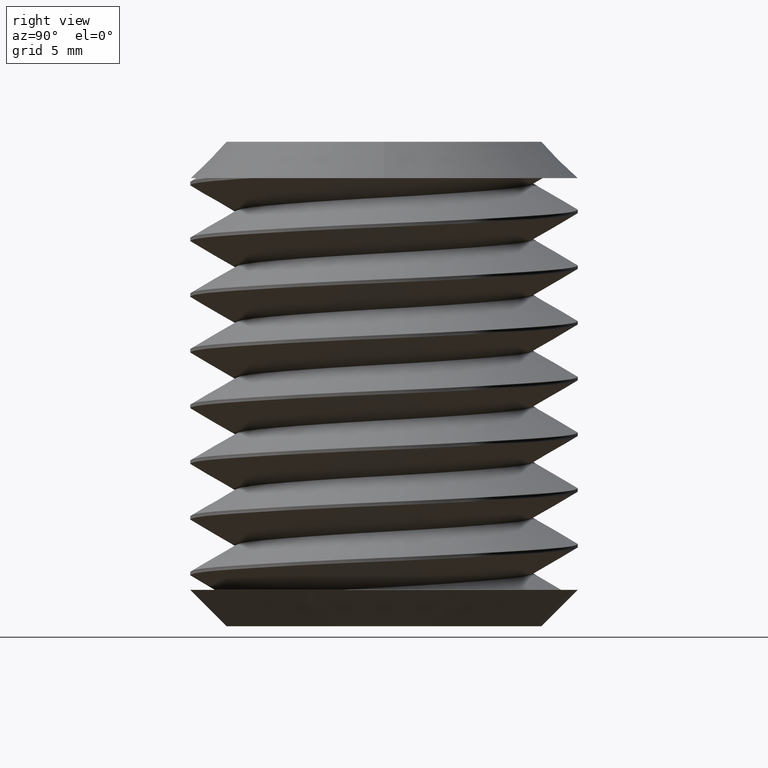
[diagram: clean part render]
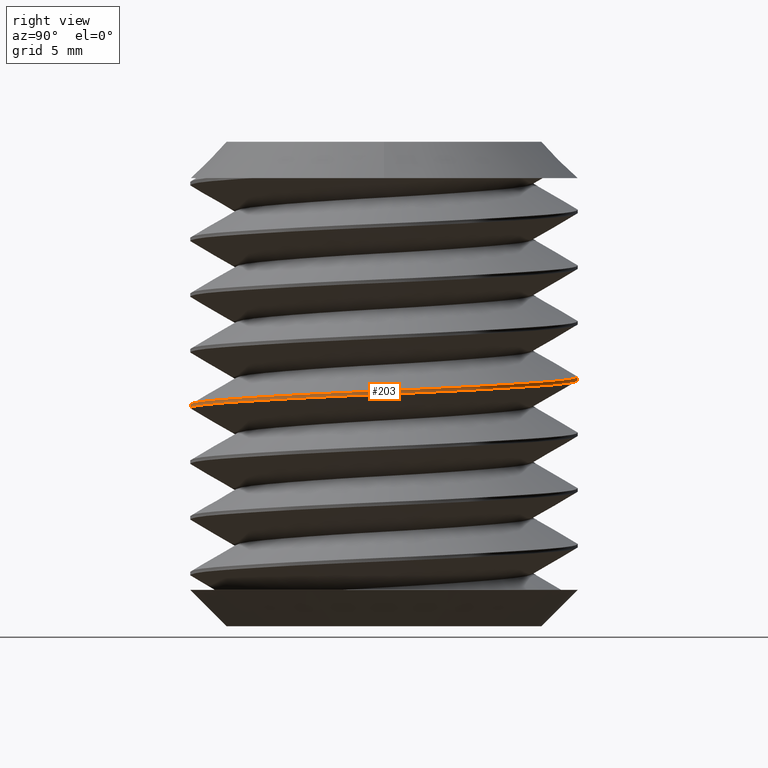
[diagram: same view with one face highlighted and labeled with its STEP entity id]
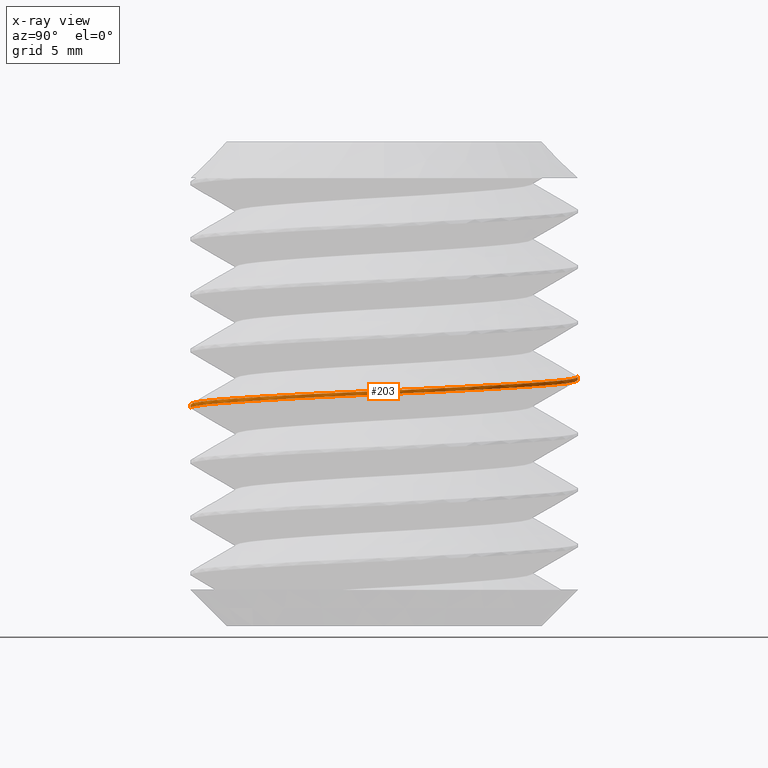
[diagram: x-ray of the same camera — body ghosted, the highlighted face saturated]
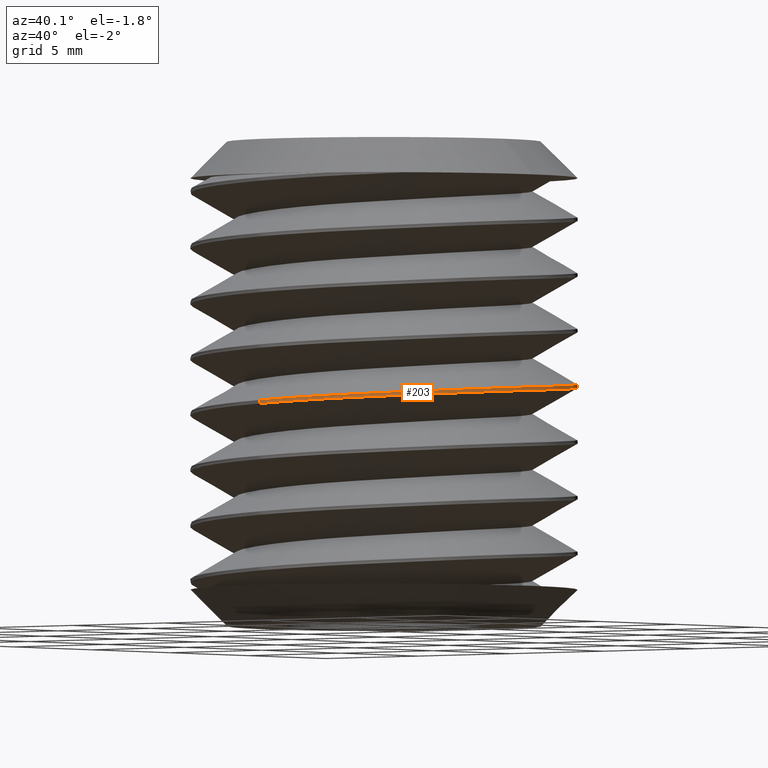
[diagram: same view with one face highlighted and labeled with its STEP entity id]
A machine part, right view. The second image highlights one B-rep face of the part: STEP entity #203.
The next image is the same camera in x-ray: the body ghosted, the highlighted face saturated — about 0% of this face is hidden behind the body in this view.
A second angle (auxiliary view) of the same face is appended — the face is thin or edge-on in the first view.
In plain terms, the highlighted cylindrical surface (partial cylindrical patch) has radius 8 mm, axis along (0, -0, 1).
Its self-contained STEP definition (entity closure, byte-faithful):
#203 = ADVANCED_FACE ( 'NONE', ( #1585 ), #1583, .T. ) ;
#330 = CARTESIAN_POINT ( 'NONE',  ( 1.557139477537179200E-014, -8.000000000000001800, -10.85272050236230800 ) ) ;
#331 = CARTESIAN_POINT ( 'NONE',  ( 0.5226088004371376400, -8.000000000000003600, -10.82767883069698400 ) ) ;
#332 = CARTESIAN_POINT ( 'NONE',  ( 1.052432807758349400, -7.947612275774814000, -10.80229143038271600 ) ) ;
#333 = CARTESIAN_POINT ( 'NONE',  ( 2.075669170900956900, -7.743626617668492300, -10.75326135474626500 ) ) ;
#334 = CARTESIAN_POINT ( 'NONE',  ( 2.574572175329633300, -7.592636507897314100, -10.72935558584506000 ) ) ;
#335 = CARTESIAN_POINT ( 'NONE',  ( 3.303389996710318400, -7.290867732059978400, -10.69443306534612100 ) ) ;
#336 = CARTESIAN_POINT ( 'NONE',  ( 3.542794317539678800, -7.177544593841743900, -10.68296160834558800 ) ) ;
#337 = CARTESIAN_POINT ( 'NONE',  ( 4.004477851331769100, -6.930562395013234700, -10.66083927243354000 ) ) ;
#338 = CARTESIAN_POINT ( 'NONE',  ( 4.228139451787611400, -6.796372243191880700, -10.65011739792593700 ) ) ;
#339 = CARTESIAN_POINT ( 'NONE',  ( 4.661260924461102700, -6.506956699247654200, -10.62773063775721000 ) ) ;
#340 = CARTESIAN_POINT ( 'NONE',  ( 4.870728819620360600, -6.351727176602501000, -10.61627056870788400 ) ) ;
#341 = CARTESIAN_POINT ( 'NONE',  ( 5.275290794567371900, -6.019945547347071500, -10.59280997892727600 ) ) ;
#342 = CARTESIAN_POINT ( 'NONE',  ( 5.471347608492910900, -5.842397324245436800, -10.58074505679400100 ) ) ;
#343 = CARTESIAN_POINT ( 'NONE',  ( 6.029531319889059700, -5.284104148455271300, -10.54420438511172300 ) ) ;
#344 = CARTESIAN_POINT ( 'NONE',  ( 6.359980615158742800, -4.880840584547417600, -10.51955312217353500 ) ) ;
#345 = CARTESIAN_POINT ( 'NONE',  ( 6.794845245353181800, -4.230610789347244900, -10.48215187162259600 ) ) ;
#346 = CARTESIAN_POINT ( 'NONE',  ( 6.929592255721014600, -4.006257374125998400, -10.46961355278633100 ) ) ;
#347 = CARTESIAN_POINT ( 'NONE',  ( 7.178056057969930800, -3.541872133057430100, -10.44439015630214700 ) ) ;
#348 = CARTESIAN_POINT ( 'NONE',  ( 7.290949748761511800, -3.303090583673568700, -10.43177668157028900 ) ) ;
#349 = CARTESIAN_POINT ( 'NONE',  ( 7.591114006980158800, -2.578451222091209200, -10.39451484990821400 ) ) ;
#350 = CARTESIAN_POINT ( 'NONE',  ( 7.742576973627810100, -2.080113069323080500, -10.37020648609279600 ) ) ;
#351 = CARTESIAN_POINT ( 'NONE',  ( 7.896422589954321200, -1.309619190562351100, -10.33454737801423900 ) ) ;
#352 = CARTESIAN_POINT ( 'NONE',  ( 7.935456899558051400, -1.047893127638161800, -10.32275132132120800 ) ) ;
#353 = CARTESIAN_POINT ( 'NONE',  ( 7.987243411192558500, -0.5229712248831823700, -10.29972789202164700 ) ) ;
#354 = CARTESIAN_POINT ( 'NONE',  ( 8.000150964010574100, -0.2595912862380586600, -10.28849639154735800 ) ) ;
#355 = CARTESIAN_POINT ( 'NONE',  ( 7.999694084788363700, 0.5330167738468779600, -10.25559454882663600 ) ) ;
#356 = CARTESIAN_POINT ( 'NONE',  ( 7.947552778798315600, 1.053396489206282100, -10.23275110672092000 ) ) ;
#357 = CARTESIAN_POINT ( 'NONE',  ( 7.742905846585414600, 2.078616940701283300, -10.18530448245440400 ) ) ;
#358 = CARTESIAN_POINT ( 'NONE',  ( 7.587871610950698700, 2.587898346384336400, -10.16045644433767100 ) ) ;
#359 = CARTESIAN_POINT ( 'NONE',  ( 7.186796644924512200, 3.552881565714243600, -10.11080339919155700 ) ) ;
#360 = CARTESIAN_POINT ( 'NONE',  ( 6.941014122410436500, 4.012129251315992700, -10.08585743516514000 ) ) ;
#361 = CARTESIAN_POINT ( 'NONE',  ( 6.503783745755876900, 4.665780913484179700, -10.04825750798594400 ) ) ;
#362 = CARTESIAN_POINT ( 'NONE',  ( 6.345644109346988400, 4.878694722663353500, -10.03563345075895800 ) ) ;
#363 = CARTESIAN_POINT ( 'NONE',  ( 6.012287449903542600, 5.284057246015201800, -10.01082543166512400 ) ) ;
#364 = CARTESIAN_POINT ( 'NONE',  ( 5.836675000095437900, 5.477324925411196900, -9.998598011390550200 ) ) ;
#365 = CARTESIAN_POINT ( 'NONE',  ( 5.283615839209622900, 6.029498921530126200, -9.962434043422714300 ) ) ;
#366 = CARTESIAN_POINT ( 'NONE',  ( 4.880011994647299300, 6.361178061722053900, -9.939000661927403600 ) ) ;
#367 = CARTESIAN_POINT ( 'NONE',  ( 4.001125067498162700, 6.947668788527074900, -9.893606360618854000 ) ) ;
#368 = CARTESIAN_POINT ( 'NONE',  ( 3.540151458336738600, 7.192973889496893300, -9.872352759798053200 ) ) ;
#369 = CARTESIAN_POINT ( 'NONE',  ( 2.817886017744910100, 7.491822530047992100, -9.837744207391260400 ) ) ;
#370 = CARTESIAN_POINT ( 'NONE',  ( 2.571951002011744900, 7.579840751945324600, -9.825959821208607900 ) ) ;
#371 = CARTESIAN_POINT ( 'NONE',  ( 2.069484246995292300, 7.732150589133570200, -9.801883289179489400 ) ) ;
#372 = CARTESIAN_POINT ( 'NONE',  ( 1.812201390825207700, 7.796448187315157000, -9.789555152315561100 ) ) ;
#373 = CARTESIAN_POINT ( 'NONE',  ( 1.041003024264442800, 7.949278305422859100, -9.752601897244087300 ) ) ;
#374 = CARTESIAN_POINT ( 'NONE',  ( 0.5226123011714698400, 7.999999999999996400, -9.727762341771153800 ) ) ;
#375 = CARTESIAN_POINT ( 'NONE',  ( 3.160760730523303400E-014, 7.999999999999998200, -9.702720502362305800 ) ) ;
#424 = CARTESIAN_POINT ( 'NONE',  ( 9.797174393178825700E-016, 8.000000000000000000, -18.49999999999999600 ) ) ;
#425 = DIRECTION ( 'NONE',  ( 0.0000000000000000000, -2.168404344971008900E-016, 1.000000000000000000 ) ) ;
#591 = CARTESIAN_POINT ( 'NONE',  ( 0.0000000000000000000, 7.999999999999998200, -9.847279497637696700 ) ) ;
#594 = CARTESIAN_POINT ( 'NONE',  ( 3.160760730523303400E-014, 7.999999999999998200, -9.702720502362305800 ) ) ;
#607 = CARTESIAN_POINT ( 'NONE',  ( 0.0000000000000000000, -8.000000000000001800, -10.99727949763769700 ) ) ;
#611 = CARTESIAN_POINT ( 'NONE',  ( 1.557139477537179200E-014, -8.000000000000001800, -10.85272050236230800 ) ) ;
#1520 = LINE ( 'NONE', #424, #1675 ) ;
#1521 = VECTOR ( 'NONE', #2077, 1000.000000000000000 ) ;
#1523 = LINE ( 'NONE', #2076, #1521 ) ;
#1583 = CYLINDRICAL_SURFACE ( 'NONE', #2610, 8.000000000000000000 ) ;
#1585 = FACE_OUTER_BOUND ( 'NONE', #1651, .T. ) ;
#1618 = ORIENTED_EDGE ( 'NONE', *, *, #2755, .T. ) ;
#1619 = ORIENTED_EDGE ( 'NONE', *, *, #2740, .F. ) ;
#1651 = EDGE_LOOP ( 'NONE', ( #1619, #1618, #1657, #1656 ) ) ;
#1656 = ORIENTED_EDGE ( 'NONE', *, *, #2750, .F. ) ;
#1657 = ORIENTED_EDGE ( 'NONE', *, *, #2752, .F. ) ;
#1675 = VECTOR ( 'NONE', #425, 1000.000000000000000 ) ;
#1922 = CARTESIAN_POINT ( 'NONE',  ( 0.0000000000000000000, 7.999999999999998200, -9.847279497637696700 ) ) ;
#1923 = CARTESIAN_POINT ( 'NONE',  ( 0.5226088008290800100, 8.000000000000001800, -9.872321169321802300 ) ) ;
#1924 = CARTESIAN_POINT ( 'NONE',  ( 1.052432807840282000, 7.947612275742669900, -9.897708569621213900 ) ) ;
#1925 = CARTESIAN_POINT ( 'NONE',  ( 2.075669170352775400, 7.743626617793573500, -9.946738645227473100 ) ) ;
#1926 = CARTESIAN_POINT ( 'NONE',  ( 2.574572174966846600, 7.592636508067564600, -9.970644414137559900 ) ) ;
#1927 = CARTESIAN_POINT ( 'NONE',  ( 3.303389997282048200, 7.290867731813230900, -10.00556693468127800 ) ) ;
#1928 = CARTESIAN_POINT ( 'NONE',  ( 3.542794317678831900, 7.177544593763048700, -10.01703839166108300 ) ) ;
#1929 = CARTESIAN_POINT ( 'NONE',  ( 4.004477850990787700, 6.930562395199888900, -10.03916072755012900 ) ) ;
#1930 = CARTESIAN_POINT ( 'NONE',  ( 4.228139451332707700, 6.796372243473950200, -10.04988260205146300 ) ) ;
#1931 = CARTESIAN_POINT ( 'NONE',  ( 4.661260923986223000, 6.506956699586857500, -10.07226936221733600 ) ) ;
#1932 = CARTESIAN_POINT ( 'NONE',  ( 4.870728819239595900, 6.351727176903738200, -10.08372943127049700 ) ) ;
#1933 = CARTESIAN_POINT ( 'NONE',  ( 5.275290794544862800, 6.019945547376560000, -10.10719002107096300 ) ) ;
#1934 = CARTESIAN_POINT ( 'NONE',  ( 5.471347608882357600, 5.842397323863181700, -10.11925494323119200 ) ) ;
#1935 = CARTESIAN_POINT ( 'NONE',  ( 6.029531319441663800, 5.284104148888206800, -10.15579561485959400 ) ) ;
#1936 = CARTESIAN_POINT ( 'NONE',  ( 6.359980614635938800, 4.880840585252848900, -10.18044687778467100 ) ) ;
#1937 = CARTESIAN_POINT ( 'NONE',  ( 6.794845245072142600, 4.230610789805599100, -10.21784812835165500 ) ) ;
#1938 = CARTESIAN_POINT ( 'NONE',  ( 6.929592255580985200, 4.006257374392532700, -10.23038644719925800 ) ) ;
#1939 = CARTESIAN_POINT ( 'NONE',  ( 7.178056058175088500, 3.541872132669162500, -10.25560984371888800 ) ) ;
#1940 = CARTESIAN_POINT ( 'NONE',  ( 7.290949748631093500, 3.303090583942217800, -10.26822331841544900 ) ) ;
#1941 = CARTESIAN_POINT ( 'NONE',  ( 7.591114006619957200, 2.578451223053172600, -10.30548515004324800 ) ) ;
#1942 = CARTESIAN_POINT ( 'NONE',  ( 7.742576973395525600, 2.080113070315427600, -10.32979351386046000 ) ) ;
#1943 = CARTESIAN_POINT ( 'NONE',  ( 7.896422589920264000, 1.309619190818434700, -10.36545262197432200 ) ) ;
#1944 = CARTESIAN_POINT ( 'NONE',  ( 7.935456899568383600, 1.047893127498165300, -10.37724867868485400 ) ) ;
#1945 = CARTESIAN_POINT ( 'NONE',  ( 7.987243411161582400, 0.5229712252325419100, -10.40027210796311300 ) ) ;
#1946 = CARTESIAN_POINT ( 'NONE',  ( 8.000150963976873100, 0.2595912881563945400, -10.41150360837384700 ) ) ;
#1947 = CARTESIAN_POINT ( 'NONE',  ( 7.999694084857610600, -0.5330167745211988900, -10.44440545119968500 ) ) ;
#1948 = CARTESIAN_POINT ( 'NONE',  ( 7.947552778603716600, -1.053396490411216500, -10.46724889333374400 ) ) ;
#1949 = CARTESIAN_POINT ( 'NONE',  ( 7.742905846510179700, -2.078616940848117900, -10.51469551755349500 ) ) ;
#1950 = CARTESIAN_POINT ( 'NONE',  ( 7.587871611078016400, -2.587898346187383200, -10.53954355565110700 ) ) ;
#1951 = CARTESIAN_POINT ( 'NONE',  ( 7.186796644303852200, -3.552881567098176600, -10.58919660088074200 ) ) ;
#1952 = CARTESIAN_POINT ( 'NONE',  ( 6.941014121685485700, -4.012129252394830200, -10.61414256489700000 ) ) ;
#1953 = CARTESIAN_POINT ( 'NONE',  ( 6.503783746153378500, -4.665780912892401500, -10.65174249197997700 ) ) ;
#1954 = CARTESIAN_POINT ( 'NONE',  ( 6.345644109951487100, -4.878694721914180300, -10.66436654919547100 ) ) ;
#1955 = CARTESIAN_POINT ( 'NONE',  ( 6.012287449645847400, -5.284057246342653600, -10.68917456835463900 ) ) ;
#1956 = CARTESIAN_POINT ( 'NONE',  ( 5.836674999539382300, -5.477324926009844200, -10.70140198864761800 ) ) ;
#1957 = CARTESIAN_POINT ( 'NONE',  ( 5.283615838316253900, -6.029498922335139200, -10.73756595663209600 ) ) ;
#1958 = CARTESIAN_POINT ( 'NONE',  ( 4.880011997463586000, -6.361178059720363500, -10.76099933792206200 ) ) ;
#1959 = CARTESIAN_POINT ( 'NONE',  ( 4.001125067245664200, -6.947668788817921400, -10.80639363939927100 ) ) ;
#1960 = CARTESIAN_POINT ( 'NONE',  ( 3.540151457353873700, -7.192973889955037100, -10.82764724024904600 ) ) ;
#1961 = CARTESIAN_POINT ( 'NONE',  ( 2.817886017224362000, -7.491822530237643100, -10.86225579263369100 ) ) ;
#1962 = CARTESIAN_POINT ( 'NONE',  ( 2.571951001905640400, -7.579840751955679900, -10.87404017879648200 ) ) ;
#1963 = CARTESIAN_POINT ( 'NONE',  ( 2.069484248318471200, -7.732150588754284300, -10.89811671075711500 ) ) ;
#1964 = CARTESIAN_POINT ( 'NONE',  ( 1.812201391819903100, -7.796448187104879900, -10.91044484763678600 ) ) ;
#1965 = CARTESIAN_POINT ( 'NONE',  ( 1.041003023434121900, -7.949278305613706400, -10.94739810279570400 ) ) ;
#1966 = CARTESIAN_POINT ( 'NONE',  ( 0.5226123001975737600, -8.000000000000001800, -10.97223765827551400 ) ) ;
#1967 = CARTESIAN_POINT ( 'NONE',  ( 0.0000000000000000000, -8.000000000000001800, -10.99727949763769700 ) ) ;
#2076 = CARTESIAN_POINT ( 'NONE',  ( 0.0000000000000000000, -8.000000000000000000, -18.50000000000000400 ) ) ;
#2077 = DIRECTION ( 'NONE',  ( 0.0000000000000000000, -2.168404344971008900E-016, 1.000000000000000000 ) ) ;
#2108 = B_SPLINE_CURVE_WITH_KNOTS ( 'NONE', 3,
 ( #330, #331, #332, #333, #334, #335, #336, #337, #338, #339, #340, #341, #342, #343, #344, #345, #346, #347, #348, #349, #350, #351, #352, #353, #354, #355, #356, #357, #358, #359, #360, #361, #362, #363, #364, #365, #366, #367, #368, #369, #370, #371, #372, #373, #374, #375 ),
 .UNSPECIFIED., .F., .F.,
 ( 4, 2, 2, 2, 2, 2, 2, 2, 2, 2, 2, 2, 2, 2, 2, 2, 2, 2, 2, 2, 2, 2, 4 ),
 ( 0.1668665815799709700, 0.1684347733912437100, 0.1700029652025164500, 0.1707870611081528400, 0.1715711570137891900, 0.1723552529194255800, 0.1731393488250619300, 0.1747075406363346700, 0.1754916365419710600, 0.1762757324476074400, 0.1778439242588801800, 0.1786280201645165400, 0.1794121160701529200, 0.1809803078814256600, 0.1825484996926984000, 0.1841166915039711400, 0.1849007874096075300, 0.1856848833152438800, 0.1872530751265166200, 0.1888212669377893600, 0.1896053628434257500, 0.1903894587490621000, 0.1919576505603348400 ),
 .UNSPECIFIED. ) ;
#2112 = B_SPLINE_CURVE_WITH_KNOTS ( 'NONE', 3,
 ( #1922, #1923, #1924, #1925, #1926, #1927, #1928, #1929, #1930, #1931, #1932, #1933, #1934, #1935, #1936, #1937, #1938, #1939, #1940, #1941, #1942, #1943, #1944, #1945, #1946, #1947, #1948, #1949, #1950, #1951, #1952, #1953, #1954, #1955, #1956, #1957, #1958, #1959, #1960, #1961, #1962, #1963, #1964, #1965, #1966, #1967 ),
 .UNSPECIFIED., .F., .F.,
 ( 4, 2, 2, 2, 2, 2, 2, 2, 2, 2, 2, 2, 2, 2, 2, 2, 2, 2, 2, 2, 2, 2, 4 ),
 ( -0.1902482597264983100, -0.1886627844455456300, -0.1870773091645929500, -0.1862845715241166200, -0.1854918338836402900, -0.1846990962431639400, -0.1839063586026876100, -0.1823208833217349300, -0.1815281456812586100, -0.1807354080407822500, -0.1791499327598295700, -0.1783571951193532500, -0.1775644574788768900, -0.1759789821979242100, -0.1743935069169715300, -0.1728080316360188800, -0.1720152939955425200, -0.1712225563550661700, -0.1696370810741135200, -0.1680516057931608400, -0.1672588681526844800, -0.1664661305122081500, -0.1648806552312554700 ),
 .UNSPECIFIED. ) ;
#2610 = AXIS2_PLACEMENT_3D ( 'NONE', #2774, #2777, #2775 ) ;
#2740 = EDGE_CURVE ( 'NONE', #2797, #2813, #2112, .T. ) ;
#2750 = EDGE_CURVE ( 'NONE', #2813, #2817, #1523, .T. ) ;
#2752 = EDGE_CURVE ( 'NONE', #2817, #2800, #2108, .T. ) ;
#2755 = EDGE_CURVE ( 'NONE', #2797, #2800, #1520, .T. ) ;
#2774 = CARTESIAN_POINT ( 'NONE',  ( 0.0000000000000000000, 0.0000000000000000000, -18.50000000000000000 ) ) ;
#2775 = DIRECTION ( 'NONE',  ( 0.0000000000000000000, -1.000000000000000000, -4.336808689942017700E-016 ) ) ;
#2777 = DIRECTION ( 'NONE',  ( 0.0000000000000000000, -2.168404344971008900E-016, 1.000000000000000000 ) ) ;
#2797 = VERTEX_POINT ( 'NONE', #591 ) ;
#2800 = VERTEX_POINT ( 'NONE', #594 ) ;
#2813 = VERTEX_POINT ( 'NONE', #607 ) ;
#2817 = VERTEX_POINT ( 'NONE', #611 ) ;